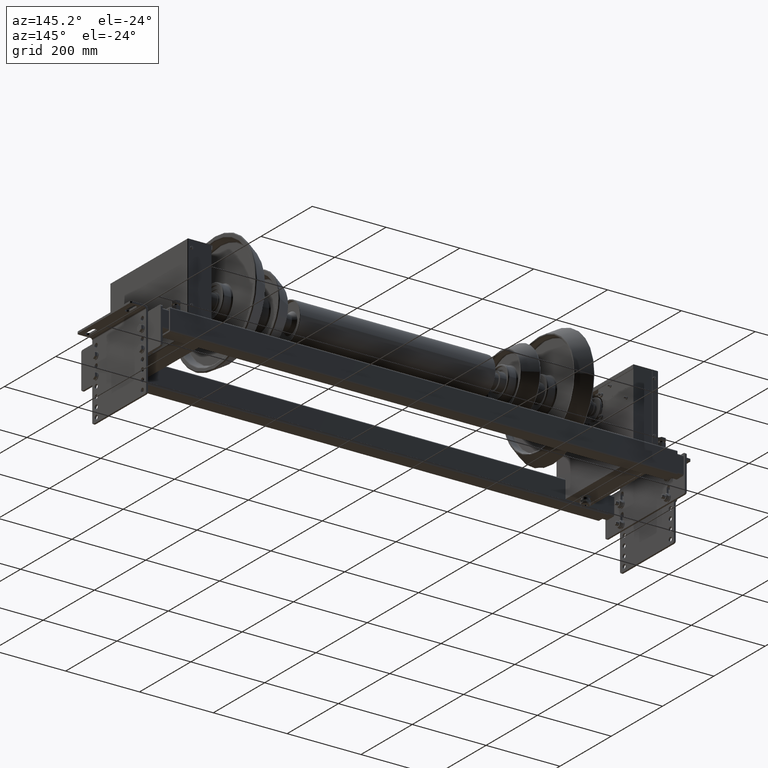
[diagram: clean part render]
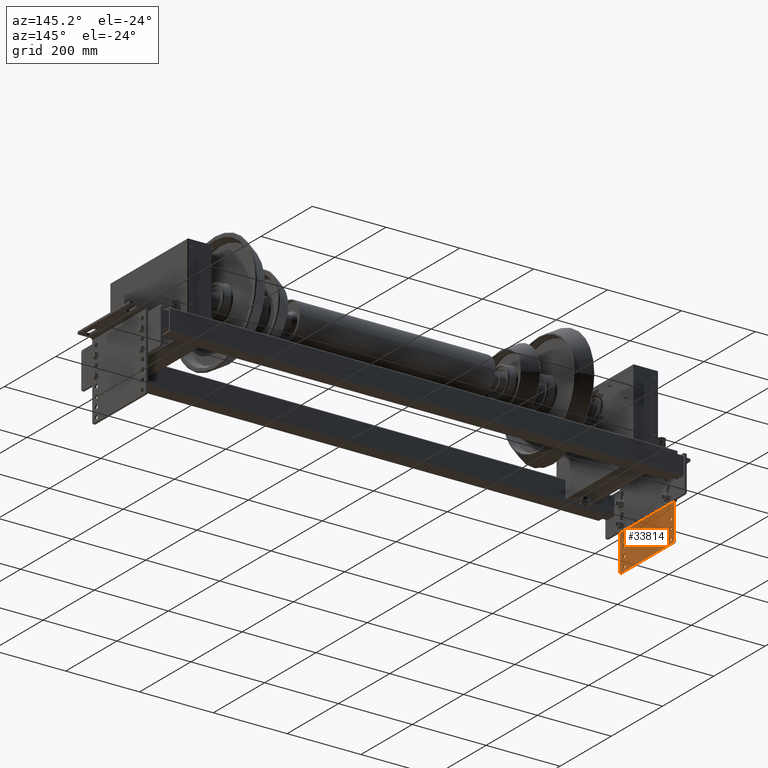
[diagram: same view with one face highlighted and labeled with its STEP entity id]
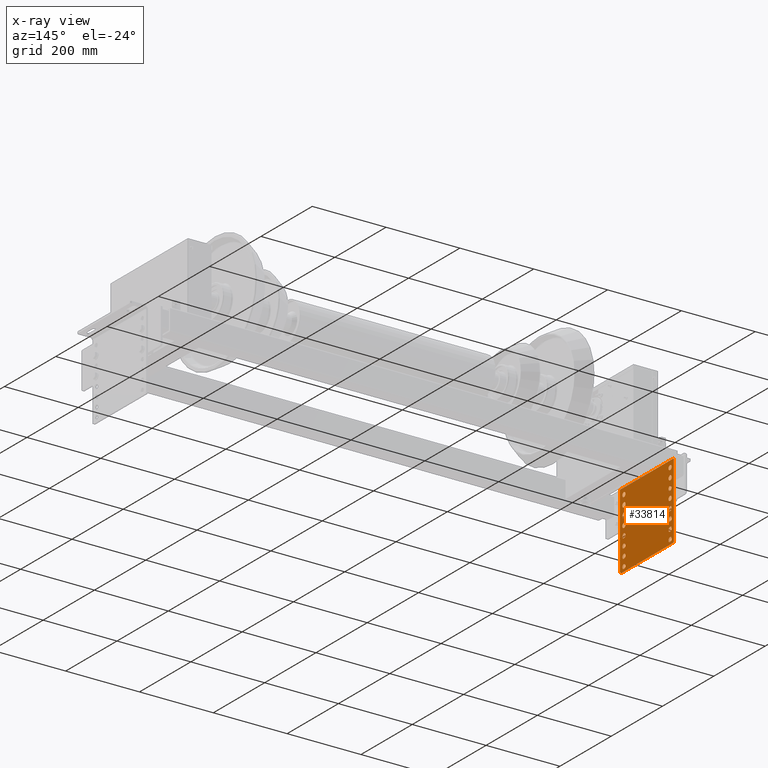
[diagram: x-ray of the same camera — body ghosted, the highlighted face saturated]
A machine part, auxiliary view. The second image highlights one B-rep face of the part: STEP entity #33814.
The next image is the same camera in x-ray: the body ghosted, the highlighted face saturated — about 0% of this face is hidden behind the body in this view.
In plain terms, the highlighted planar face has unit normal (-1, -0, -0).
Its self-contained STEP definition (entity closure, byte-faithful):
#32842=CARTESIAN_POINT('',(-80.957093014422583,-114.089066365486590,-0.500000000000000));
#32843=VERTEX_POINT('',#32842);
#32859=CARTESIAN_POINT('',(-92.957093014422583,-114.089066365486590,-0.500000000000000));
#32860=VERTEX_POINT('',#32859);
#32867=CARTESIAN_POINT('',(-86.957093014422583,-114.089066365486590,-0.500000000000000));
#32868=DIRECTION('',(0.0,0.0,1.0));
#32869=DIRECTION('',(1.0,0.0,0.0));
#32870=AXIS2_PLACEMENT_3D('',#32867,#32868,#32869);
#32871=CIRCLE('',#32870,6.0);
#32872=EDGE_CURVE('',#32843,#32860,#32871,.T.);
#32884=CARTESIAN_POINT('',(99.042906985577417,-114.089066365486590,-0.500000000000000));
#32885=VERTEX_POINT('',#32884);
#32901=CARTESIAN_POINT('',(87.042906985577417,-114.089066365486590,-0.500000000000000));
#32902=VERTEX_POINT('',#32901);
#32909=CARTESIAN_POINT('',(93.042906985577417,-114.089066365486590,-0.500000000000000));
#32910=DIRECTION('',(0.0,0.0,1.0));
#32911=DIRECTION('',(1.0,0.0,0.0));
#32912=AXIS2_PLACEMENT_3D('',#32909,#32910,#32911);
#32913=CIRCLE('',#32912,6.0);
#32914=EDGE_CURVE('',#32885,#32902,#32913,.T.);
#32926=CARTESIAN_POINT('',(-80.957093014422583,-89.089066365486588,-0.500000000000000));
#32927=VERTEX_POINT('',#32926);
#32943=CARTESIAN_POINT('',(-92.957093014422583,-89.089066365486588,-0.500000000000000));
#32944=VERTEX_POINT('',#32943);
#32951=CARTESIAN_POINT('',(-86.957093014422583,-89.089066365486588,-0.500000000000000));
#32952=DIRECTION('',(0.0,0.0,1.0));
#32953=DIRECTION('',(1.0,0.0,0.0));
#32954=AXIS2_PLACEMENT_3D('',#32951,#32952,#32953);
#32955=CIRCLE('',#32954,6.0);
#32956=EDGE_CURVE('',#32927,#32944,#32955,.T.);
#32968=CARTESIAN_POINT('',(99.042906985577417,-89.089066365486588,-0.500000000000000));
#32969=VERTEX_POINT('',#32968);
#32985=CARTESIAN_POINT('',(87.042906985577417,-89.089066365486588,-0.500000000000000));
#32986=VERTEX_POINT('',#32985);
#32993=CARTESIAN_POINT('',(93.042906985577417,-89.089066365486588,-0.500000000000000));
#32994=DIRECTION('',(0.0,0.0,1.0));
#32995=DIRECTION('',(1.0,0.0,0.0));
#32996=AXIS2_PLACEMENT_3D('',#32993,#32994,#32995);
#32997=CIRCLE('',#32996,6.0);
#32998=EDGE_CURVE('',#32969,#32986,#32997,.T.);
#33010=CARTESIAN_POINT('',(-80.957093014422568,-64.089066365486588,-0.500000000000000));
#33011=VERTEX_POINT('',#33010);
#33027=CARTESIAN_POINT('',(-92.957093014422568,-64.089066365486588,-0.500000000000000));
#33028=VERTEX_POINT('',#33027);
#33035=CARTESIAN_POINT('',(-86.957093014422568,-64.089066365486588,-0.500000000000000));
#33036=DIRECTION('',(0.0,0.0,1.0));
#33037=DIRECTION('',(1.0,0.0,0.0));
#33038=AXIS2_PLACEMENT_3D('',#33035,#33036,#33037);
#33039=CIRCLE('',#33038,6.0);
#33040=EDGE_CURVE('',#33011,#33028,#33039,.T.);
#33052=CARTESIAN_POINT('',(99.042906985577417,-64.089066365486588,-0.500000000000000));
#33053=VERTEX_POINT('',#33052);
#33069=CARTESIAN_POINT('',(87.042906985577417,-64.089066365486588,-0.500000000000000));
#33070=VERTEX_POINT('',#33069);
#33077=CARTESIAN_POINT('',(93.042906985577417,-64.089066365486588,-0.500000000000000));
#33078=DIRECTION('',(0.0,0.0,1.0));
#33079=DIRECTION('',(1.0,0.0,0.0));
#33080=AXIS2_PLACEMENT_3D('',#33077,#33078,#33079);
#33081=CIRCLE('',#33080,6.0);
#33082=EDGE_CURVE('',#33053,#33070,#33081,.T.);
#33094=CARTESIAN_POINT('',(-80.957093014422568,-39.089066365486588,-0.500000000000000));
#33095=VERTEX_POINT('',#33094);
#33111=CARTESIAN_POINT('',(-92.957093014422568,-39.089066365486588,-0.500000000000000));
#33112=VERTEX_POINT('',#33111);
#33119=CARTESIAN_POINT('',(-86.957093014422568,-39.089066365486588,-0.500000000000000));
#33120=DIRECTION('',(0.0,0.0,1.0));
#33121=DIRECTION('',(1.0,0.0,0.0));
#33122=AXIS2_PLACEMENT_3D('',#33119,#33120,#33121);
#33123=CIRCLE('',#33122,6.0);
#33124=EDGE_CURVE('',#33095,#33112,#33123,.T.);
#33136=CARTESIAN_POINT('',(99.042906985577446,-39.089066365486588,-0.500000000000000));
#33137=VERTEX_POINT('',#33136);
#33153=CARTESIAN_POINT('',(87.042906985577446,-39.089066365486588,-0.500000000000000));
#33154=VERTEX_POINT('',#33153);
#33161=CARTESIAN_POINT('',(93.042906985577446,-39.089066365486588,-0.500000000000000));
#33162=DIRECTION('',(0.0,0.0,1.0));
#33163=DIRECTION('',(1.0,0.0,0.0));
#33164=AXIS2_PLACEMENT_3D('',#33161,#33162,#33163);
#33165=CIRCLE('',#33164,6.0);
#33166=EDGE_CURVE('',#33137,#33154,#33165,.T.);
#33178=CARTESIAN_POINT('',(-80.957093014422554,-14.089066365486588,-0.500000000000000));
#33179=VERTEX_POINT('',#33178);
#33195=CARTESIAN_POINT('',(-92.957093014422554,-14.089066365486588,-0.500000000000000));
#33196=VERTEX_POINT('',#33195);
#33203=CARTESIAN_POINT('',(-86.957093014422554,-14.089066365486588,-0.500000000000000));
#33204=DIRECTION('',(0.0,0.0,1.0));
#33205=DIRECTION('',(1.0,0.0,0.0));
#33206=AXIS2_PLACEMENT_3D('',#33203,#33204,#33205);
#33207=CIRCLE('',#33206,6.0);
#33208=EDGE_CURVE('',#33179,#33196,#33207,.T.);
#33220=CARTESIAN_POINT('',(99.042906985577446,-14.089066365486588,-0.500000000000000));
#33221=VERTEX_POINT('',#33220);
#33237=CARTESIAN_POINT('',(87.042906985577446,-14.089066365486588,-0.500000000000000));
#33238=VERTEX_POINT('',#33237);
#33245=CARTESIAN_POINT('',(93.042906985577446,-14.089066365486588,-0.500000000000000));
#33246=DIRECTION('',(0.0,0.0,1.0));
#33247=DIRECTION('',(1.0,0.0,0.0));
#33248=AXIS2_PLACEMENT_3D('',#33245,#33246,#33247);
#33249=CIRCLE('',#33248,6.0);
#33250=EDGE_CURVE('',#33221,#33238,#33249,.T.);
#33262=CARTESIAN_POINT('',(-80.957093014422554,10.910933634513412,-0.500000000000000));
#33263=VERTEX_POINT('',#33262);
#33279=CARTESIAN_POINT('',(-92.957093014422554,10.910933634513412,-0.500000000000000));
#33280=VERTEX_POINT('',#33279);
#33287=CARTESIAN_POINT('',(-86.957093014422554,10.910933634513412,-0.500000000000000));
#33288=DIRECTION('',(0.0,0.0,1.0));
#33289=DIRECTION('',(1.0,0.0,0.0));
#33290=AXIS2_PLACEMENT_3D('',#33287,#33288,#33289);
#33291=CIRCLE('',#33290,6.0);
#33292=EDGE_CURVE('',#33263,#33280,#33291,.T.);
#33304=CARTESIAN_POINT('',(99.042906985577446,10.910933634513412,-0.500000000000000));
#33305=VERTEX_POINT('',#33304);
#33321=CARTESIAN_POINT('',(87.042906985577446,10.910933634513412,-0.500000000000000));
#33322=VERTEX_POINT('',#33321);
#33329=CARTESIAN_POINT('',(93.042906985577446,10.910933634513412,-0.500000000000000));
#33330=DIRECTION('',(0.0,0.0,1.0));
#33331=DIRECTION('',(1.0,0.0,0.0));
#33332=AXIS2_PLACEMENT_3D('',#33329,#33330,#33331);
#33333=CIRCLE('',#33332,6.0);
#33334=EDGE_CURVE('',#33305,#33322,#33333,.T.);
#33346=CARTESIAN_POINT('',(-80.957093014422554,35.910933634513412,-0.500000000000000));
#33347=VERTEX_POINT('',#33346);
#33363=CARTESIAN_POINT('',(-92.957093014422554,35.910933634513412,-0.500000000000000));
#33364=VERTEX_POINT('',#33363);
#33371=CARTESIAN_POINT('',(-86.957093014422554,35.910933634513412,-0.500000000000000));
#33372=DIRECTION('',(0.0,0.0,1.0));
#33373=DIRECTION('',(1.0,0.0,0.0));
#33374=AXIS2_PLACEMENT_3D('',#33371,#33372,#33373);
#33375=CIRCLE('',#33374,6.0);
#33376=EDGE_CURVE('',#33347,#33364,#33375,.T.);
#33388=CARTESIAN_POINT('',(99.042906985577446,35.910933634513412,-0.500000000000000));
#33389=VERTEX_POINT('',#33388);
#33405=CARTESIAN_POINT('',(87.042906985577446,35.910933634513412,-0.500000000000000));
#33406=VERTEX_POINT('',#33405);
#33413=CARTESIAN_POINT('',(93.042906985577446,35.910933634513412,-0.500000000000000));
#33414=DIRECTION('',(0.0,0.0,1.0));
#33415=DIRECTION('',(1.0,0.0,0.0));
#33416=AXIS2_PLACEMENT_3D('',#33413,#33414,#33415);
#33417=CIRCLE('',#33416,6.0);
#33418=EDGE_CURVE('',#33389,#33406,#33417,.T.);
#33430=CARTESIAN_POINT('',(-80.957093014422540,60.910933634513412,-0.500000000000000));
#33431=VERTEX_POINT('',#33430);
#33447=CARTESIAN_POINT('',(-92.957093014422540,60.910933634513412,-0.500000000000000));
#33448=VERTEX_POINT('',#33447);
#33455=CARTESIAN_POINT('',(-86.957093014422540,60.910933634513412,-0.500000000000000));
#33456=DIRECTION('',(0.0,0.0,1.0));
#33457=DIRECTION('',(1.0,0.0,0.0));
#33458=AXIS2_PLACEMENT_3D('',#33455,#33456,#33457);
#33459=CIRCLE('',#33458,6.0);
#33460=EDGE_CURVE('',#33431,#33448,#33459,.T.);
#33472=CARTESIAN_POINT('',(99.042906985577446,60.910933634513412,-0.500000000000000));
#33473=VERTEX_POINT('',#33472);
#33489=CARTESIAN_POINT('',(87.042906985577446,60.910933634513412,-0.500000000000000));
#33490=VERTEX_POINT('',#33489);
#33497=CARTESIAN_POINT('',(93.042906985577446,60.910933634513412,-0.500000000000000));
#33498=DIRECTION('',(0.0,0.0,1.0));
#33499=DIRECTION('',(1.0,0.0,0.0));
#33500=AXIS2_PLACEMENT_3D('',#33497,#33498,#33499);
#33501=CIRCLE('',#33500,6.0);
#33502=EDGE_CURVE('',#33473,#33490,#33501,.T.);
#33523=CARTESIAN_POINT('',(103.042906985577450,-126.589066365486590,-0.500000000000000));
#33524=VERTEX_POINT('',#33523);
#33531=CARTESIAN_POINT('',(108.042906985577450,-121.589066365486590,-0.500000000000000));
#33532=VERTEX_POINT('',#33531);
#33533=CARTESIAN_POINT('',(103.042906985577450,-121.589066365486590,-0.500000000000000));
#33534=DIRECTION('',(0.0,0.0,1.000000000000000));
#33535=DIRECTION('',(0.707106781186547,-0.707106781186547,0.0));
#33536=AXIS2_PLACEMENT_3D('',#33533,#33534,#33535);
#33537=CIRCLE('',#33536,4.999999999999999);
#33538=EDGE_CURVE('',#33524,#33532,#33537,.T.);
#33555=CARTESIAN_POINT('',(108.042906985577450,78.410933634513455,-0.500000000000000));
#33556=VERTEX_POINT('',#33555);
#33557=CARTESIAN_POINT('',(108.042906985577450,78.410933634513455,-0.500000000000000));
#33558=DIRECTION('',(0.0,-1.0,0.0));
#33559=VECTOR('',#33558,200.000000000000060);
#33560=LINE('',#33557,#33559);
#33561=EDGE_CURVE('',#33556,#33532,#33560,.T.);
#33614=CARTESIAN_POINT('',(3.042906985577438,-19.089066365486588,-0.500000000000000));
#33615=DIRECTION('',(0.0,0.0,1.0));
#33616=DIRECTION('',(1.0,0.0,0.0));
#33617=AXIS2_PLACEMENT_3D('',#33614,#33615,#33616);
#33618=PLANE('',#33617);
#33619=ORIENTED_EDGE('',*,*,#33538,.F.);
#33620=CARTESIAN_POINT('',(-96.957093014422583,-126.589066365486590,-0.500000000000000));
#33621=VERTEX_POINT('',#33620);
#33622=CARTESIAN_POINT('',(103.042906985577450,-126.589066365486590,-0.500000000000000));
#33623=DIRECTION('',(-1.0,0.0,0.0));
#33624=VECTOR('',#33623,200.000000000000030);
#33625=LINE('',#33622,#33624);
#33626=EDGE_CURVE('',#33524,#33621,#33625,.T.);
#33627=ORIENTED_EDGE('',*,*,#33626,.T.);
#33628=CARTESIAN_POINT('',(-101.957093014422580,-121.589066365486590,-0.500000000000000));
#33629=VERTEX_POINT('',#33628);
#33630=CARTESIAN_POINT('',(-96.957093014422583,-121.589066365486590,-0.500000000000000));
#33631=DIRECTION('',(0.0,0.0,1.000000000000000));
#33632=DIRECTION('',(-0.707106781186547,-0.707106781186547,0.0));
#33633=AXIS2_PLACEMENT_3D('',#33630,#33631,#33632);
#33634=CIRCLE('',#33633,4.999999999999999);
#33635=EDGE_CURVE('',#33629,#33621,#33634,.T.);
#33636=ORIENTED_EDGE('',*,*,#33635,.F.);
#33637=CARTESIAN_POINT('',(-101.957093014422580,78.410933634513441,-0.500000000000000));
#33638=VERTEX_POINT('',#33637);
#33639=CARTESIAN_POINT('',(-101.957093014422580,-121.589066365486590,-0.500000000000000));
#33640=DIRECTION('',(0.0,1.0,0.0));
#33641=VECTOR('',#33640,200.000000000000030);
#33642=LINE('',#33639,#33641);
#33643=EDGE_CURVE('',#33629,#33638,#33642,.T.);
#33644=ORIENTED_EDGE('',*,*,#33643,.T.);
#33645=CARTESIAN_POINT('',(108.042906985577450,78.410933634513455,-0.500000000000000));
#33646=DIRECTION('',(-1.0,0.0,0.0));
#33647=VECTOR('',#33646,210.000000000000030);
#33648=LINE('',#33645,#33647);
#33649=EDGE_CURVE('',#33556,#33638,#33648,.T.);
#33650=ORIENTED_EDGE('',*,*,#33649,.F.);
#33651=ORIENTED_EDGE('',*,*,#33561,.T.);
#33652=EDGE_LOOP('',(#33619,#33627,#33636,#33644,#33650,#33651));
#33653=FACE_OUTER_BOUND('',#33652,.T.);
#33654=CARTESIAN_POINT('',(93.042906985577446,60.910933634513412,-0.500000000000000));
#33655=DIRECTION('',(0.0,0.0,1.0));
#33656=DIRECTION('',(1.0,0.0,0.0));
#33657=AXIS2_PLACEMENT_3D('',#33654,#33655,#33656);
#33658=CIRCLE('',#33657,6.0);
#33659=EDGE_CURVE('',#33490,#33473,#33658,.T.);
#33660=ORIENTED_EDGE('',*,*,#33659,.T.);
#33661=ORIENTED_EDGE('',*,*,#33502,.T.);
#33662=EDGE_LOOP('',(#33660,#33661));
#33663=FACE_BOUND('',#33662,.T.);
#33664=CARTESIAN_POINT('',(-86.957093014422540,60.910933634513412,-0.500000000000000));
#33665=DIRECTION('',(0.0,0.0,1.0));
#33666=DIRECTION('',(1.0,0.0,0.0));
#33667=AXIS2_PLACEMENT_3D('',#33664,#33665,#33666);
#33668=CIRCLE('',#33667,6.0);
#33669=EDGE_CURVE('',#33448,#33431,#33668,.T.);
#33670=ORIENTED_EDGE('',*,*,#33669,.T.);
#33671=ORIENTED_EDGE('',*,*,#33460,.T.);
#33672=EDGE_LOOP('',(#33670,#33671));
#33673=FACE_BOUND('',#33672,.T.);
#33674=CARTESIAN_POINT('',(93.042906985577446,35.910933634513412,-0.500000000000000));
#33675=DIRECTION('',(0.0,0.0,1.0));
#33676=DIRECTION('',(1.0,0.0,0.0));
#33677=AXIS2_PLACEMENT_3D('',#33674,#33675,#33676);
#33678=CIRCLE('',#33677,6.0);
#33679=EDGE_CURVE('',#33406,#33389,#33678,.T.);
#33680=ORIENTED_EDGE('',*,*,#33679,.T.);
#33681=ORIENTED_EDGE('',*,*,#33418,.T.);
#33682=EDGE_LOOP('',(#33680,#33681));
#33683=FACE_BOUND('',#33682,.T.);
#33684=CARTESIAN_POINT('',(-86.957093014422554,35.910933634513412,-0.500000000000000));
#33685=DIRECTION('',(0.0,0.0,1.0));
#33686=DIRECTION('',(1.0,0.0,0.0));
#33687=AXIS2_PLACEMENT_3D('',#33684,#33685,#33686);
#33688=CIRCLE('',#33687,6.0);
#33689=EDGE_CURVE('',#33364,#33347,#33688,.T.);
#33690=ORIENTED_EDGE('',*,*,#33689,.T.);
#33691=ORIENTED_EDGE('',*,*,#33376,.T.);
#33692=EDGE_LOOP('',(#33690,#33691));
#33693=FACE_BOUND('',#33692,.T.);
#33694=CARTESIAN_POINT('',(93.042906985577446,10.910933634513412,-0.500000000000000));
#33695=DIRECTION('',(0.0,0.0,1.0));
#33696=DIRECTION('',(1.0,0.0,0.0));
#33697=AXIS2_PLACEMENT_3D('',#33694,#33695,#33696);
#33698=CIRCLE('',#33697,6.0);
#33699=EDGE_CURVE('',#33322,#33305,#33698,.T.);
#33700=ORIENTED_EDGE('',*,*,#33699,.T.);
#33701=ORIENTED_EDGE('',*,*,#33334,.T.);
#33702=EDGE_LOOP('',(#33700,#33701));
#33703=FACE_BOUND('',#33702,.T.);
#33704=CARTESIAN_POINT('',(-86.957093014422554,10.910933634513412,-0.500000000000000));
#33705=DIRECTION('',(0.0,0.0,1.0));
#33706=DIRECTION('',(1.0,0.0,0.0));
#33707=AXIS2_PLACEMENT_3D('',#33704,#33705,#33706);
#33708=CIRCLE('',#33707,6.0);
#33709=EDGE_CURVE('',#33280,#33263,#33708,.T.);
#33710=ORIENTED_EDGE('',*,*,#33709,.T.);
#33711=ORIENTED_EDGE('',*,*,#33292,.T.);
#33712=EDGE_LOOP('',(#33710,#33711));
#33713=FACE_BOUND('',#33712,.T.);
#33714=CARTESIAN_POINT('',(93.042906985577446,-14.089066365486588,-0.500000000000000));
#33715=DIRECTION('',(0.0,0.0,1.0));
#33716=DIRECTION('',(1.0,0.0,0.0));
#33717=AXIS2_PLACEMENT_3D('',#33714,#33715,#33716);
#33718=CIRCLE('',#33717,6.0);
#33719=EDGE_CURVE('',#33238,#33221,#33718,.T.);
#33720=ORIENTED_EDGE('',*,*,#33719,.T.);
#33721=ORIENTED_EDGE('',*,*,#33250,.T.);
#33722=EDGE_LOOP('',(#33720,#33721));
#33723=FACE_BOUND('',#33722,.T.);
#33724=CARTESIAN_POINT('',(-86.957093014422554,-14.089066365486588,-0.500000000000000));
#33725=DIRECTION('',(0.0,0.0,1.0));
#33726=DIRECTION('',(1.0,0.0,0.0));
#33727=AXIS2_PLACEMENT_3D('',#33724,#33725,#33726);
#33728=CIRCLE('',#33727,6.0);
#33729=EDGE_CURVE('',#33196,#33179,#33728,.T.);
#33730=ORIENTED_EDGE('',*,*,#33729,.T.);
#33731=ORIENTED_EDGE('',*,*,#33208,.T.);
#33732=EDGE_LOOP('',(#33730,#33731));
#33733=FACE_BOUND('',#33732,.T.);
#33734=CARTESIAN_POINT('',(93.042906985577446,-39.089066365486588,-0.500000000000000));
#33735=DIRECTION('',(0.0,0.0,1.0));
#33736=DIRECTION('',(1.0,0.0,0.0));
#33737=AXIS2_PLACEMENT_3D('',#33734,#33735,#33736);
#33738=CIRCLE('',#33737,6.0);
#33739=EDGE_CURVE('',#33154,#33137,#33738,.T.);
#33740=ORIENTED_EDGE('',*,*,#33739,.T.);
#33741=ORIENTED_EDGE('',*,*,#33166,.T.);
#33742=EDGE_LOOP('',(#33740,#33741));
#33743=FACE_BOUND('',#33742,.T.);
#33744=CARTESIAN_POINT('',(-86.957093014422568,-39.089066365486588,-0.500000000000000));
#33745=DIRECTION('',(0.0,0.0,1.0));
#33746=DIRECTION('',(1.0,0.0,0.0));
#33747=AXIS2_PLACEMENT_3D('',#33744,#33745,#33746);
#33748=CIRCLE('',#33747,6.0);
#33749=EDGE_CURVE('',#33112,#33095,#33748,.T.);
#33750=ORIENTED_EDGE('',*,*,#33749,.T.);
#33751=ORIENTED_EDGE('',*,*,#33124,.T.);
#33752=EDGE_LOOP('',(#33750,#33751));
#33753=FACE_BOUND('',#33752,.T.);
#33754=CARTESIAN_POINT('',(93.042906985577417,-64.089066365486588,-0.500000000000000));
#33755=DIRECTION('',(0.0,0.0,1.0));
#33756=DIRECTION('',(1.0,0.0,0.0));
#33757=AXIS2_PLACEMENT_3D('',#33754,#33755,#33756);
#33758=CIRCLE('',#33757,6.0);
#33759=EDGE_CURVE('',#33070,#33053,#33758,.T.);
#33760=ORIENTED_EDGE('',*,*,#33759,.T.);
#33761=ORIENTED_EDGE('',*,*,#33082,.T.);
#33762=EDGE_LOOP('',(#33760,#33761));
#33763=FACE_BOUND('',#33762,.T.);
#33764=CARTESIAN_POINT('',(-86.957093014422568,-64.089066365486588,-0.500000000000000));
#33765=DIRECTION('',(0.0,0.0,1.0));
#33766=DIRECTION('',(1.0,0.0,0.0));
#33767=AXIS2_PLACEMENT_3D('',#33764,#33765,#33766);
#33768=CIRCLE('',#33767,6.0);
#33769=EDGE_CURVE('',#33028,#33011,#33768,.T.);
#33770=ORIENTED_EDGE('',*,*,#33769,.T.);
#33771=ORIENTED_EDGE('',*,*,#33040,.T.);
#33772=EDGE_LOOP('',(#33770,#33771));
#33773=FACE_BOUND('',#33772,.T.);
#33774=CARTESIAN_POINT('',(93.042906985577417,-89.089066365486588,-0.500000000000000));
#33775=DIRECTION('',(0.0,0.0,1.0));
#33776=DIRECTION('',(1.0,0.0,0.0));
#33777=AXIS2_PLACEMENT_3D('',#33774,#33775,#33776);
#33778=CIRCLE('',#33777,6.0);
#33779=EDGE_CURVE('',#32986,#32969,#33778,.T.);
#33780=ORIENTED_EDGE('',*,*,#33779,.T.);
#33781=ORIENTED_EDGE('',*,*,#32998,.T.);
#33782=EDGE_LOOP('',(#33780,#33781));
#33783=FACE_BOUND('',#33782,.T.);
#33784=CARTESIAN_POINT('',(-86.957093014422583,-89.089066365486588,-0.500000000000000));
#33785=DIRECTION('',(0.0,0.0,1.0));
#33786=DIRECTION('',(1.0,0.0,0.0));
#33787=AXIS2_PLACEMENT_3D('',#33784,#33785,#33786);
#33788=CIRCLE('',#33787,6.0);
#33789=EDGE_CURVE('',#32944,#32927,#33788,.T.);
#33790=ORIENTED_EDGE('',*,*,#33789,.T.);
#33791=ORIENTED_EDGE('',*,*,#32956,.T.);
#33792=EDGE_LOOP('',(#33790,#33791));
#33793=FACE_BOUND('',#33792,.T.);
#33794=CARTESIAN_POINT('',(93.042906985577417,-114.089066365486590,-0.500000000000000));
#33795=DIRECTION('',(0.0,0.0,1.0));
#33796=DIRECTION('',(1.0,0.0,0.0));
#33797=AXIS2_PLACEMENT_3D('',#33794,#33795,#33796);
#33798=CIRCLE('',#33797,6.0);
#33799=EDGE_CURVE('',#32902,#32885,#33798,.T.);
#33800=ORIENTED_EDGE('',*,*,#33799,.T.);
#33801=ORIENTED_EDGE('',*,*,#32914,.T.);
#33802=EDGE_LOOP('',(#33800,#33801));
#33803=FACE_BOUND('',#33802,.T.);
#33804=CARTESIAN_POINT('',(-86.957093014422583,-114.089066365486590,-0.500000000000000));
#33805=DIRECTION('',(0.0,0.0,1.0));
#33806=DIRECTION('',(1.0,0.0,0.0));
#33807=AXIS2_PLACEMENT_3D('',#33804,#33805,#33806);
#33808=CIRCLE('',#33807,6.0);
#33809=EDGE_CURVE('',#32860,#32843,#33808,.T.);
#33810=ORIENTED_EDGE('',*,*,#33809,.T.);
#33811=ORIENTED_EDGE('',*,*,#32872,.T.);
#33812=EDGE_LOOP('',(#33810,#33811));
#33813=FACE_BOUND('',#33812,.T.);
#33814=ADVANCED_FACE('',(#33653,#33663,#33673,#33683,#33693,#33703,#33713,#33723,#33733,#33743,#33753,#33763,#33773,#33783,#33793,#33803,#33813),#33618,.F.);